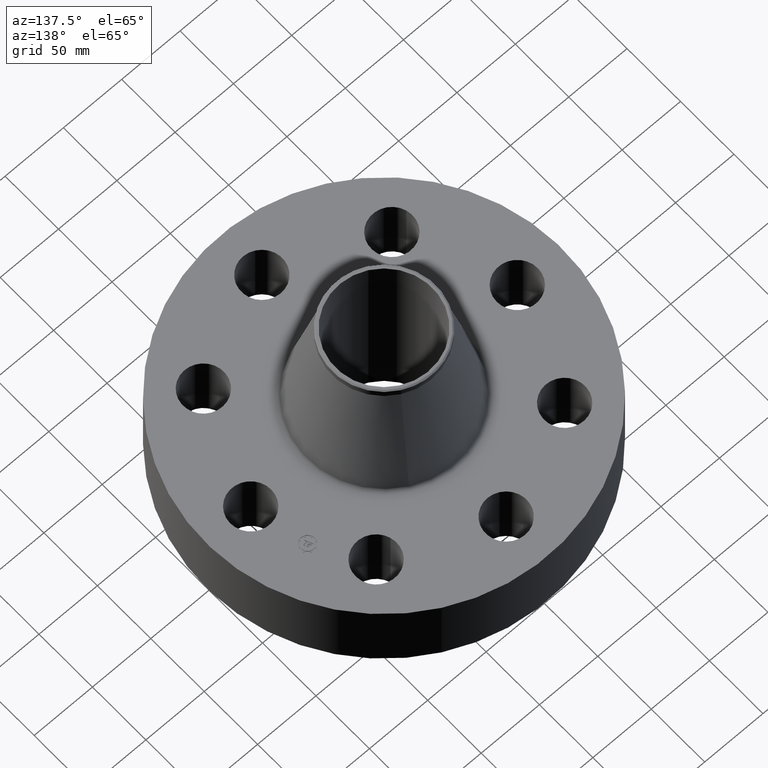
[diagram: clean part render]
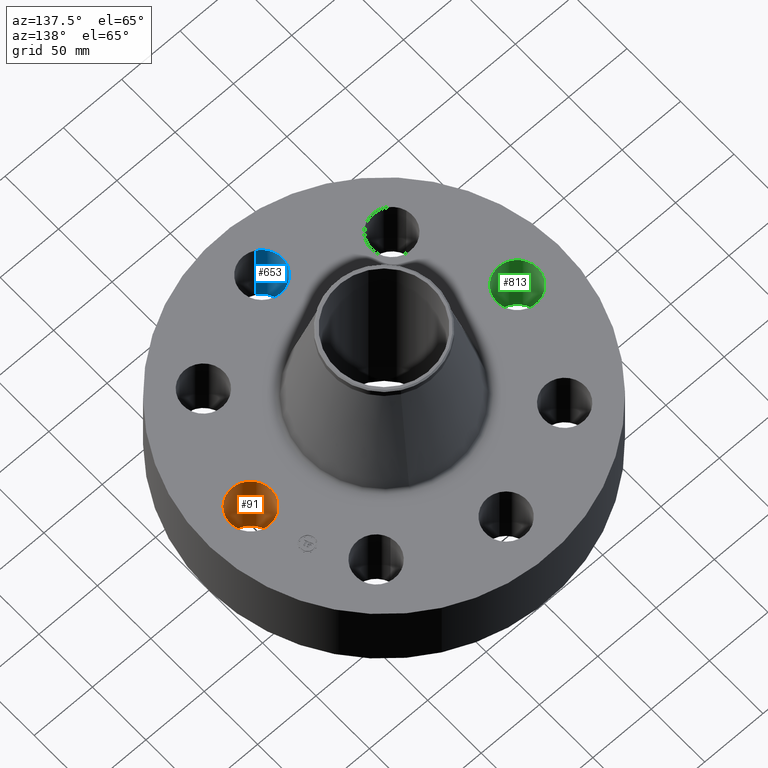
[diagram: same view with three faces highlighted in distinct colors, each labeled with its STEP entity id]
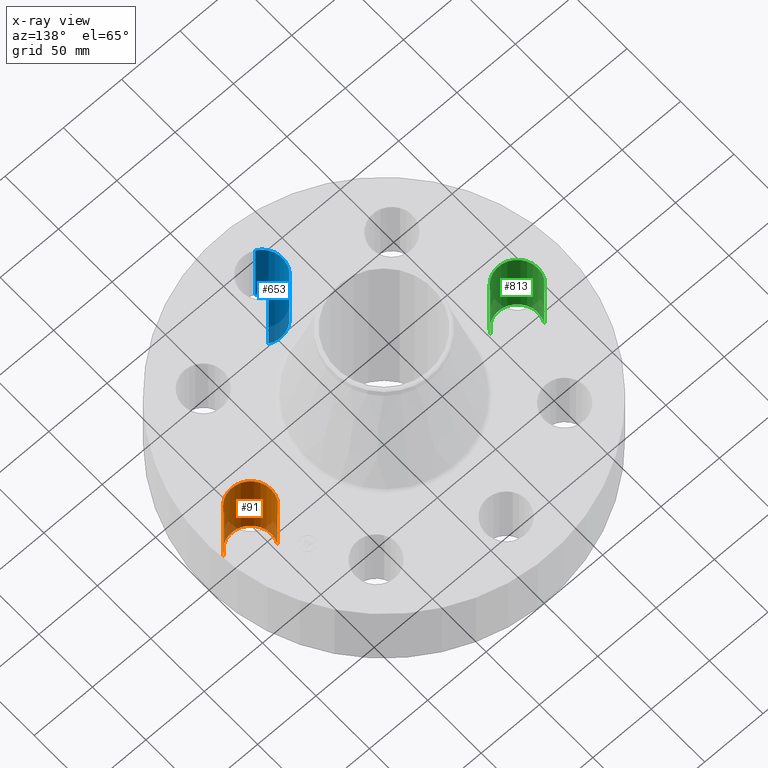
[diagram: x-ray of the same camera — body ghosted, the three highlighted faces saturated]
A machine part, auxiliary view with three faces highlighted in distinct colors.
The next image is the same camera in x-ray (body ghosted, the three faces saturated) — at least one of them is partly hidden behind the body in this view.
Their STEP definitions:

[orange] entity #91 — the highlighted cylindrical surface (edge-blend (fillet) strip) has radius 17.526 mm, axis along (0, -0, -1).
#38=AXIS2_PLACEMENT_3D('Cylinder Axis2P3D',#35,#36,#37) ;
#77=AXIS2_PLACEMENT_3D('Circle Axis2P3D',#75,#76,$) ;
#82=AXIS2_PLACEMENT_3D('Circle Axis2P3D',#80,#81,$) ;
#35=CARTESIAN_POINT('Axis2P3D Location',(4.50000000002,0.,2.61606299214)) ;
#40=CARTESIAN_POINT('Line Origine',(3.89446803231,0.330803621638,1.31000000001)) ;
#44=CARTESIAN_POINT('Vertex',(3.89446803231,0.330803621638,0.)) ;
#46=CARTESIAN_POINT('Vertex',(3.89446803231,0.330803621638,2.62000000001)) ;
#53=CARTESIAN_POINT('Vertex',(5.10553196772,-0.330803621638,0.)) ;
#56=CARTESIAN_POINT('Line Origine',(5.10553196772,-0.330803621638,1.31000000001)) ;
#60=CARTESIAN_POINT('Vertex',(5.10553196772,-0.330803621638,2.62000000001)) ;
#75=CARTESIAN_POINT('Axis2P3D Location',(4.50000000002,0.,0.)) ;
#80=CARTESIAN_POINT('Axis2P3D Location',(4.50000000002,0.,2.62000000001)) ;
#36=DIRECTION('Axis2P3D Direction',(0.,-0.,-0.0393700787402)) ;
#37=DIRECTION('Axis2P3D XDirection',(0.0345504945626,-0.0188750212049,0.)) ;
#41=DIRECTION('Vector Direction',(0.,0.,-0.0393700787402)) ;
#57=DIRECTION('Vector Direction',(0.,0.,-0.0393700787402)) ;
#76=DIRECTION('Axis2P3D Direction',(0.,-0.,-0.0393700787402)) ;
#81=DIRECTION('Axis2P3D Direction',(0.,-0.,-0.0393700787402)) ;
#42=VECTOR('Line Direction',#41,0.0393700787402) ;
#58=VECTOR('Line Direction',#57,0.0393700787402) ;
#86=ORIENTED_EDGE('',*,*,#62,.F.) ;
#87=ORIENTED_EDGE('',*,*,#79,.T.) ;
#88=ORIENTED_EDGE('',*,*,#48,.T.) ;
#89=ORIENTED_EDGE('',*,*,#84,.F.) ;
#91=ADVANCED_FACE('PartBody',(#90),#39,.F.) ;
#78=CIRCLE('generated circle',#77,0.690000000003) ;
#83=CIRCLE('generated circle',#82,0.690000000003) ;
#39=CYLINDRICAL_SURFACE('generated cylinder',#38,0.690000000003) ;
#48=EDGE_CURVE('',#45,#47,#43,.F.) ;
#62=EDGE_CURVE('',#54,#61,#59,.F.) ;
#79=EDGE_CURVE('',#54,#45,#78,.T.) ;
#84=EDGE_CURVE('',#61,#47,#83,.T.) ;
#85=EDGE_LOOP('',(#86,#87,#88,#89)) ;
#90=FACE_OUTER_BOUND('',#85,.T.) ;
#43=LINE('Line',#40,#42) ;
#59=LINE('Line',#56,#58) ;
#45=VERTEX_POINT('',#44) ;
#47=VERTEX_POINT('',#46) ;
#54=VERTEX_POINT('',#53) ;
#61=VERTEX_POINT('',#60) ;

[blue] entity #653 — the highlighted cylindrical surface (edge-blend (fillet) strip) has radius 17.526 mm, axis along (0, -0, -1).
#470=AXIS2_PLACEMENT_3D('Circle Axis2P3D',#468,#469,$) ;
#614=AXIS2_PLACEMENT_3D('Cylinder Axis2P3D',#611,#612,#613) ;
#644=AXIS2_PLACEMENT_3D('Circle Axis2P3D',#642,#643,$) ;
#463=CARTESIAN_POINT('Vertex',(0.330803621638,-3.89446803231,0.)) ;
#465=CARTESIAN_POINT('Vertex',(-0.330803621638,-5.10553196772,0.)) ;
#468=CARTESIAN_POINT('Axis2P3D Location',(1.39870617276E-016,-4.50000000002,0.)) ;
#611=CARTESIAN_POINT('Axis2P3D Location',(-2.83936939293E-016,-4.50000000002,2.61606299214)) ;
#616=CARTESIAN_POINT('Line Origine',(0.330803621638,-3.89446803231,1.31000000001)) ;
#620=CARTESIAN_POINT('Vertex',(0.330803621638,-3.89446803231,2.62000000001)) ;
#623=CARTESIAN_POINT('Line Origine',(-0.330803621638,-5.10553196772,1.31000000001)) ;
#627=CARTESIAN_POINT('Vertex',(-0.330803621638,-5.10553196772,2.62000000001)) ;
#642=CARTESIAN_POINT('Axis2P3D Location',(-2.83936939293E-016,-4.50000000002,2.62000000001)) ;
#469=DIRECTION('Axis2P3D Direction',(0.,0.,-0.0393700787402)) ;
#612=DIRECTION('Axis2P3D Direction',(0.,-0.,-0.0393700787402)) ;
#613=DIRECTION('Axis2P3D XDirection',(-0.0188750212049,-0.0345504945626,0.)) ;
#617=DIRECTION('Vector Direction',(0.,0.,-0.0393700787402)) ;
#624=DIRECTION('Vector Direction',(0.,0.,-0.0393700787402)) ;
#643=DIRECTION('Axis2P3D Direction',(0.,-0.,-0.0393700787402)) ;
#618=VECTOR('Line Direction',#617,0.0393700787402) ;
#625=VECTOR('Line Direction',#624,0.0393700787402) ;
#648=ORIENTED_EDGE('',*,*,#629,.F.) ;
#649=ORIENTED_EDGE('',*,*,#472,.T.) ;
#650=ORIENTED_EDGE('',*,*,#622,.T.) ;
#651=ORIENTED_EDGE('',*,*,#646,.F.) ;
#653=ADVANCED_FACE('PartBody',(#652),#615,.F.) ;
#471=CIRCLE('generated circle',#470,0.690000000003) ;
#645=CIRCLE('generated circle',#644,0.690000000003) ;
#615=CYLINDRICAL_SURFACE('generated cylinder',#614,0.690000000003) ;
#472=EDGE_CURVE('',#466,#464,#471,.T.) ;
#622=EDGE_CURVE('',#464,#621,#619,.F.) ;
#629=EDGE_CURVE('',#466,#628,#626,.F.) ;
#646=EDGE_CURVE('',#628,#621,#645,.T.) ;
#647=EDGE_LOOP('',(#648,#649,#650,#651)) ;
#652=FACE_OUTER_BOUND('',#647,.T.) ;
#619=LINE('Line',#616,#618) ;
#626=LINE('Line',#623,#625) ;
#464=VERTEX_POINT('',#463) ;
#466=VERTEX_POINT('',#465) ;
#621=VERTEX_POINT('',#620) ;
#628=VERTEX_POINT('',#627) ;

[green] entity #813 — the highlighted cylindrical surface (edge-blend (fillet) strip) has radius 17.526 mm, axis along (-0, 0, -1).
#497=AXIS2_PLACEMENT_3D('Circle Axis2P3D',#495,#496,$) ;
#786=AXIS2_PLACEMENT_3D('Cylinder Axis2P3D',#783,#784,#785) ;
#804=AXIS2_PLACEMENT_3D('Circle Axis2P3D',#802,#803,$) ;
#495=CARTESIAN_POINT('Axis2P3D Location',(-4.50000000002,-5.59482469102E-016,0.)) ;
#499=CARTESIAN_POINT('Vertex',(-3.89446803231,-0.330803621638,0.)) ;
#501=CARTESIAN_POINT('Vertex',(-5.10553196772,0.330803621638,0.)) ;
#783=CARTESIAN_POINT('Axis2P3D Location',(-4.50000000002,-5.51091059619E-016,2.61606299214)) ;
#788=CARTESIAN_POINT('Line Origine',(-3.89446803231,-0.330803621638,1.31000000001)) ;
#792=CARTESIAN_POINT('Vertex',(-3.89446803231,-0.330803621638,2.62000000001)) ;
#795=CARTESIAN_POINT('Line Origine',(-5.10553196772,0.330803621638,1.31000000001)) ;
#799=CARTESIAN_POINT('Vertex',(-5.10553196772,0.330803621638,2.62000000001)) ;
#802=CARTESIAN_POINT('Axis2P3D Location',(-4.50000000002,-5.51091059619E-016,2.62000000001)) ;
#496=DIRECTION('Axis2P3D Direction',(0.,0.,-0.0393700787402)) ;
#784=DIRECTION('Axis2P3D Direction',(-0.,0.,-0.0393700787402)) ;
#785=DIRECTION('Axis2P3D XDirection',(-0.0345504945626,0.0188750212049,0.)) ;
#789=DIRECTION('Vector Direction',(0.,0.,-0.0393700787402)) ;
#796=DIRECTION('Vector Direction',(0.,0.,-0.0393700787402)) ;
#803=DIRECTION('Axis2P3D Direction',(-0.,0.,-0.0393700787402)) ;
#790=VECTOR('Line Direction',#789,0.0393700787402) ;
#797=VECTOR('Line Direction',#796,0.0393700787402) ;
#808=ORIENTED_EDGE('',*,*,#794,.F.) ;
#809=ORIENTED_EDGE('',*,*,#503,.T.) ;
#810=ORIENTED_EDGE('',*,*,#801,.T.) ;
#811=ORIENTED_EDGE('',*,*,#806,.F.) ;
#813=ADVANCED_FACE('PartBody',(#812),#787,.F.) ;
#498=CIRCLE('generated circle',#497,0.690000000003) ;
#805=CIRCLE('generated circle',#804,0.690000000003) ;
#787=CYLINDRICAL_SURFACE('generated cylinder',#786,0.690000000003) ;
#503=EDGE_CURVE('',#500,#502,#498,.T.) ;
#794=EDGE_CURVE('',#500,#793,#791,.F.) ;
#801=EDGE_CURVE('',#502,#800,#798,.F.) ;
#806=EDGE_CURVE('',#793,#800,#805,.T.) ;
#807=EDGE_LOOP('',(#808,#809,#810,#811)) ;
#812=FACE_OUTER_BOUND('',#807,.T.) ;
#791=LINE('Line',#788,#790) ;
#798=LINE('Line',#795,#797) ;
#500=VERTEX_POINT('',#499) ;
#502=VERTEX_POINT('',#501) ;
#793=VERTEX_POINT('',#792) ;
#800=VERTEX_POINT('',#799) ;